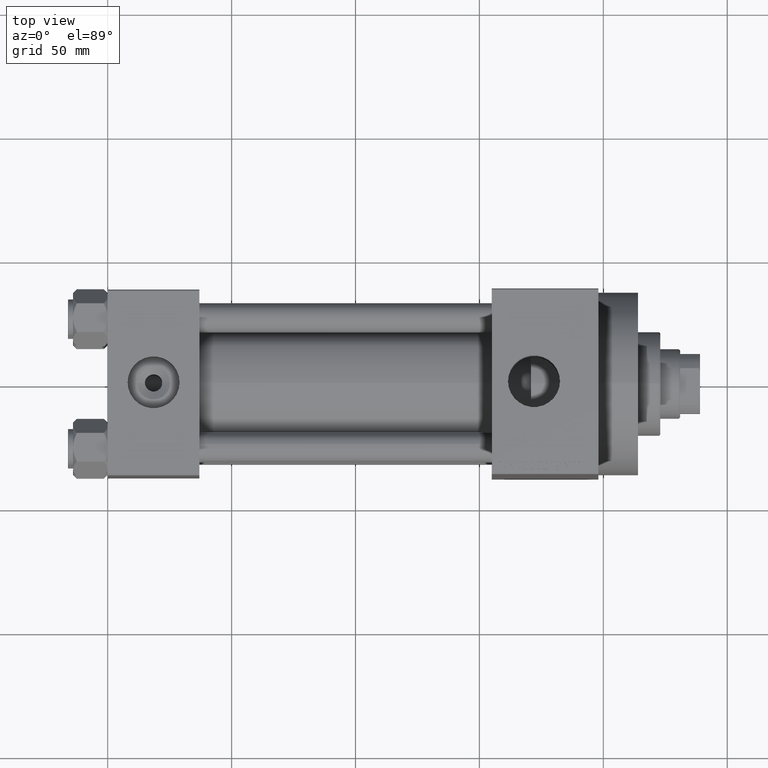
[diagram: clean part render]
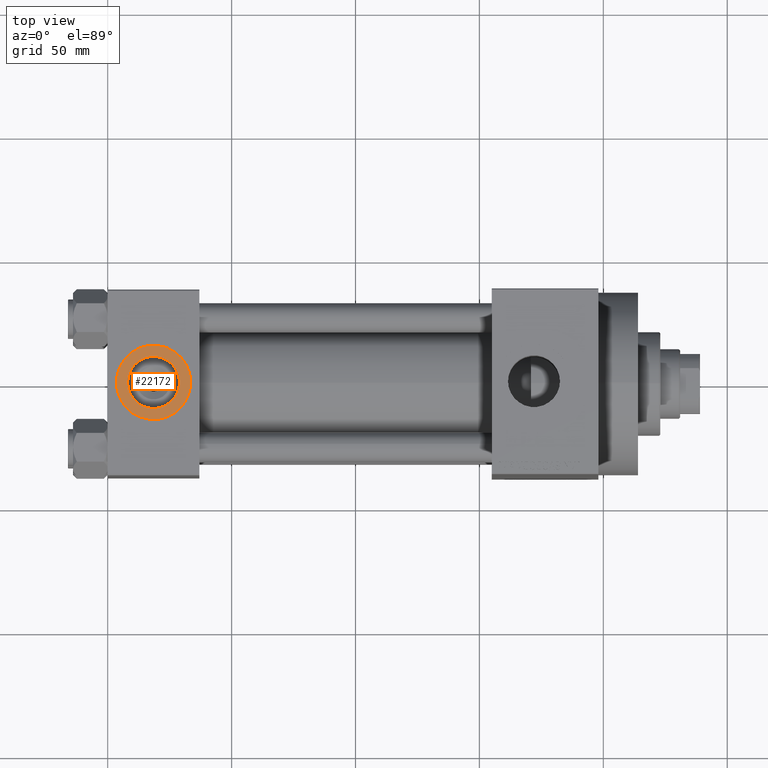
[diagram: same view with one face highlighted and labeled with its STEP entity id]
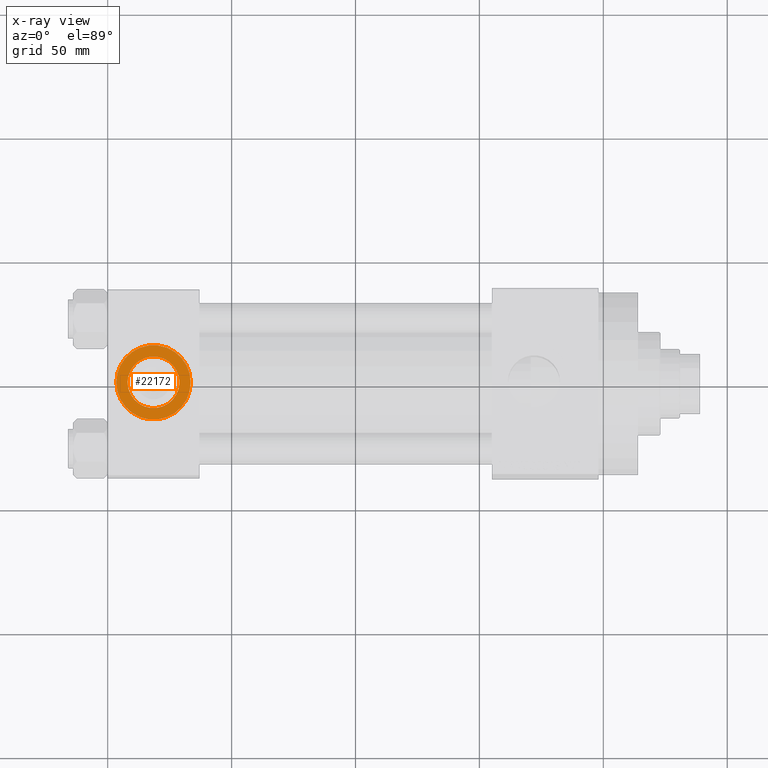
[diagram: x-ray of the same camera — body ghosted, the highlighted face saturated]
A machine part, top view. The second image highlights one B-rep face of the part: STEP entity #22172.
The next image is the same camera in x-ray: the body ghosted, the highlighted face saturated — about 0% of this face is hidden behind the body in this view.
In plain terms, the highlighted planar face has unit normal (0, 0, 1).
Its self-contained STEP definition (entity closure, byte-faithful):
#383 = EDGE_CURVE ( 'NONE', #34196, #8264, #16877, .T. ) ;
#942 = VERTEX_POINT ( 'NONE', #7651 ) ;
#2336 = AXIS2_PLACEMENT_3D ( 'NONE', #23827, #38467, #9421 ) ;
#3742 = ORIENTED_EDGE ( 'NONE', *, *, #16300, .T. ) ;
#5115 = EDGE_LOOP ( 'NONE', ( #3742, #11672 ) ) ;
#6380 = AXIS2_PLACEMENT_3D ( 'NONE', #21816, #41656, #25424 ) ;
#7640 = DIRECTION ( 'NONE',  ( 1.000000000000000000, 0.000000000000000000, 0.000000000000000000 ) ) ;
#7651 = CARTESIAN_POINT ( 'NONE',  ( 3.499999999999997780, -3.367200229209391300E-15, 37.29999999999999716 ) ) ;
#8264 = VERTEX_POINT ( 'NONE', #32895 ) ;
#9421 = DIRECTION ( 'NONE',  ( 1.000000000000000000, 0.000000000000000000, 0.000000000000000000 ) ) ;
#11091 = EDGE_LOOP ( 'NONE', ( #42083, #31310 ) ) ;
#11332 = FACE_BOUND ( 'NONE', #11091, .T. ) ;
#11672 = ORIENTED_EDGE ( 'NONE', *, *, #14273, .T. ) ;
#14273 = EDGE_CURVE ( 'NONE', #942, #42508, #28574, .T. ) ;
#16300 = EDGE_CURVE ( 'NONE', #42508, #942, #27075, .T. ) ;
#16877 = CIRCLE ( 'NONE', #2336, 10.48000000000000043 ) ;
#19131 = CARTESIAN_POINT ( 'NONE',  ( 28.98000000000000043, -5.204170427930421283E-15, 37.29999999999999716 ) ) ;
#21816 = CARTESIAN_POINT ( 'NONE',  ( 18.50000000000000000, -5.204170427930421283E-15, 37.29999999999999716 ) ) ;
#22172 = ADVANCED_FACE ( 'NONE', ( #11332, #25722 ), #33161, .T. ) ;
#23827 = CARTESIAN_POINT ( 'NONE',  ( 18.50000000000000000, -5.204170427930421283E-15, 37.29999999999999716 ) ) ;
#24949 = CIRCLE ( 'NONE', #41051, 10.48000000000000043 ) ;
#25424 = DIRECTION ( 'NONE',  ( 1.000000000000000000, 0.000000000000000000, 0.000000000000000000 ) ) ;
#25722 = FACE_OUTER_BOUND ( 'NONE', #5115, .T. ) ;
#27075 = CIRCLE ( 'NONE', #6380, 15.00000000000000355 ) ;
#27332 = CARTESIAN_POINT ( 'NONE',  ( 33.50000000000000000, -5.204170427930421283E-15, 37.29999999999999716 ) ) ;
#27868 = CARTESIAN_POINT ( 'NONE',  ( 18.50000000000000000, -5.204170427930421283E-15, 37.29999999999999716 ) ) ;
#28574 = CIRCLE ( 'NONE', #40839, 15.00000000000000355 ) ;
#28861 = CARTESIAN_POINT ( 'NONE',  ( 18.50000000000000000, -5.204170427930421283E-15, 37.29999999999999716 ) ) ;
#30990 = DIRECTION ( 'NONE',  ( 0.000000000000000000, 0.000000000000000000, 1.000000000000000000 ) ) ;
#31310 = ORIENTED_EDGE ( 'NONE', *, *, #43029, .F. ) ;
#32702 = DIRECTION ( 'NONE',  ( 0.000000000000000000, 0.000000000000000000, 1.000000000000000000 ) ) ;
#32895 = CARTESIAN_POINT ( 'NONE',  ( 8.019999999999999574, -3.920740582423995006E-15, 37.29999999999999716 ) ) ;
#33161 = PLANE ( 'NONE',  #39547 ) ;
#34196 = VERTEX_POINT ( 'NONE', #19131 ) ;
#36913 = DIRECTION ( 'NONE',  ( 0.000000000000000000, 0.000000000000000000, 1.000000000000000000 ) ) ;
#37394 = CARTESIAN_POINT ( 'NONE',  ( 18.50000000000000000, -5.204170427930421283E-15, 37.29999999999999716 ) ) ;
#38467 = DIRECTION ( 'NONE',  ( 0.000000000000000000, 0.000000000000000000, 1.000000000000000000 ) ) ;
#39547 = AXIS2_PLACEMENT_3D ( 'NONE', #28861, #32702, #40376 ) ;
#40376 = DIRECTION ( 'NONE',  ( 1.000000000000000000, 0.000000000000000000, -0.000000000000000000 ) ) ;
#40839 = AXIS2_PLACEMENT_3D ( 'NONE', #37394, #36913, #7640 ) ;
#41051 = AXIS2_PLACEMENT_3D ( 'NONE', #27868, #30990, #42500 ) ;
#41656 = DIRECTION ( 'NONE',  ( 0.000000000000000000, 0.000000000000000000, 1.000000000000000000 ) ) ;
#42083 = ORIENTED_EDGE ( 'NONE', *, *, #383, .F. ) ;
#42500 = DIRECTION ( 'NONE',  ( 1.000000000000000000, 0.000000000000000000, 0.000000000000000000 ) ) ;
#42508 = VERTEX_POINT ( 'NONE', #27332 ) ;
#43029 = EDGE_CURVE ( 'NONE', #8264, #34196, #24949, .T. ) ;